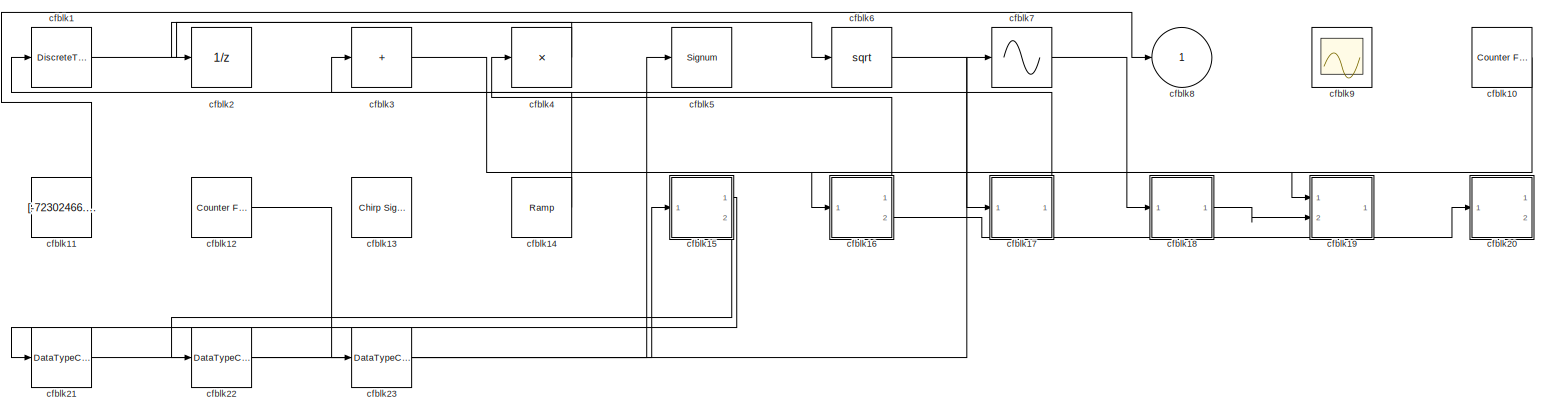
[diagram: root canvas - part 1/1, most of the canvas]
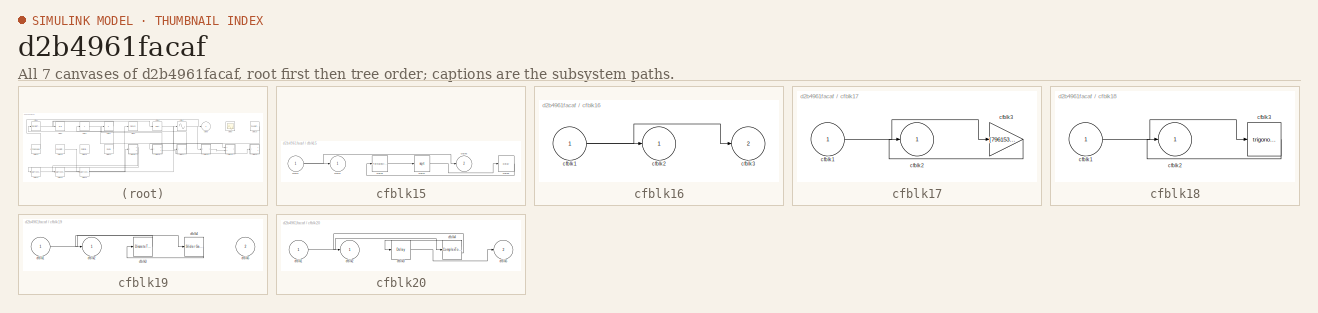
[diagram: thumbnail index - all 7 canvases of the model, root first then tree order]
MODEL slx_d2b4961facaf
KIND model
CONFIG AbsTol = auto
CONFIG EnableMultiTasking = off
CONFIG FixedStep = auto
CONFIG MaxStep = auto
CONFIG MinStep = auto
CONFIG RelTol = 1e-3
CONFIG SampleTimeConstraint = Unconstrained
CONFIG SolverName = VariableStepAuto
CONFIG StartTime = 0.0
CONFIG StopTime = 10.0
BLOCK [DiscreteTransferFcn] cfblk1
  InputPortMap = u0
  Ports = [1, 1]
  SampleTime = 1
BLOCK [Reference] cfblk10  REF=simulink/Sources/Counter
Free-Running
  Ports = [0, 1]
  SourceBlock = simulink/Sources/Counter\nFree-Running
  SourceProductBaseCode = SL
  SourceType = Counter Free-Running
BLOCK [Constant] cfblk11
  SampleTime = 1
  Value = [-72302466.835759]
BLOCK [Reference] cfblk12  REF=simulink/Sources/Counter
Free-Running
  Ports = [0, 1]
  SourceBlock = simulink/Sources/Counter\nFree-Running
  SourceProductBaseCode = SL
  SourceType = Counter Free-Running
BLOCK [Reference] cfblk13  REF=simulink/Sources/Chirp Signal
  Ports = [0, 1]
  SourceBlock = simulink/Sources/Chirp Signal
  SourceProductBaseCode = SL
  SourceType = chirp
BLOCK [Reference] cfblk14  REF=simulink/Sources/Ramp
  Ports = [0, 1]
  SourceBlock = simulink/Sources/Ramp
  SourceProductBaseCode = SL
  SourceType = Ramp
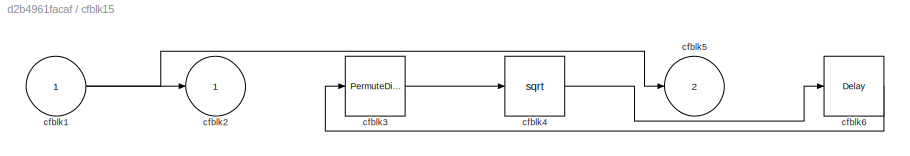
BLOCK [SubSystem] cfblk15
  Ports = [1, 2]
  RequestExecContextInheritance = off
BLOCK [Inport] cfblk15/cfblk1
BLOCK [Outport] cfblk15/cfblk2
BLOCK [PermuteDimensions] cfblk15/cfblk3
BLOCK [Sqrt] cfblk15/cfblk4
BLOCK [Outport] cfblk15/cfblk5
  Port = 2
BLOCK [Delay] cfblk15/cfblk6
  InputPortMap = u0
  Ports = [1, 1]
  SampleTime = 1
BLOCK [SubSystem] cfblk16
  Ports = [1, 2]
  RequestExecContextInheritance = off
BLOCK [Inport] cfblk16/cfblk1
BLOCK [Outport] cfblk16/cfblk2
BLOCK [Outport] cfblk16/cfblk3
  Port = 2
BLOCK [SubSystem] cfblk17
  Ports = [1, 1]
  RequestExecContextInheritance = off
BLOCK [Inport] cfblk17/cfblk1
BLOCK [Outport] cfblk17/cfblk2
BLOCK [Gain] cfblk17/cfblk3
  Gain = [796153779.028941]
BLOCK [SubSystem] cfblk18
  Ports = [1, 1]
  RequestExecContextInheritance = off
BLOCK [Inport] cfblk18/cfblk1
BLOCK [Outport] cfblk18/cfblk2
BLOCK [Trigonometry] cfblk18/cfblk3
  Ports = [1, 1]
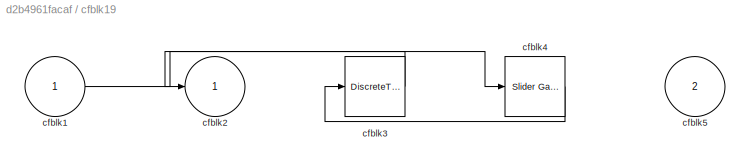
BLOCK [SubSystem] cfblk19
  Ports = [2, 1]
  RequestExecContextInheritance = off
BLOCK [Inport] cfblk19/cfblk1
BLOCK [Outport] cfblk19/cfblk2
BLOCK [DiscreteTransferFcn] cfblk19/cfblk3
  InputPortMap = u0
  Ports = [1, 1]
  SampleTime = 1
BLOCK [Reference] cfblk19/cfblk4  REF=simulink/Math
Operations/Slider
Gain
  Ports = [1, 1]
  SourceBlock = simulink/Math\nOperations/Slider\nGain
  SourceProductBaseCode = SL
  SourceType = Slider Gain
BLOCK [Inport] cfblk19/cfblk5
  Port = 2
BLOCK [UnitDelay] cfblk2
  HasFrameUpgradeWarning = on
BLOCK [SubSystem] cfblk20
  Ports = [1, 2]
  RequestExecContextInheritance = off
BLOCK [Inport] cfblk20/cfblk1
BLOCK [Outport] cfblk20/cfblk2
BLOCK [Delay] cfblk20/cfblk3
  InputPortMap = u0
  Ports = [1, 1]
  SampleTime = 1
BLOCK [ComplexToRealImag] cfblk20/cfblk4
  Ports = [1, 2]
BLOCK [Outport] cfblk20/cfblk5
  Port = 2
BLOCK [DataTypeConversion] cfblk21
  RndMeth = Floor
  SaturateOnIntegerOverflow = off
BLOCK [DataTypeConversion] cfblk22
  RndMeth = Floor
  SaturateOnIntegerOverflow = off
BLOCK [DataTypeConversion] cfblk23
  RndMeth = Floor
  SaturateOnIntegerOverflow = off
BLOCK [Sum] cfblk3
  IconShape = rectangular
  Inputs = +
  Ports = [1, 1]
BLOCK [Product] cfblk4
  Inputs = *
  Ports = [1, 1]
BLOCK [Signum] cfblk5
BLOCK [Sqrt] cfblk6
BLOCK [Sin] cfblk7
  Ports = [1, 1]
  SampleTime = 0
  TimeSource = Use external signal
BLOCK [Outport] cfblk8
BLOCK [Scope] cfblk9
  Floating = on
  NumInputPorts = 1
  Ports = []
LINE cfblk10:1 -> cfblk16:1
LINE cfblk11:1 -> cfblk8:1
LINE cfblk12:1 -> cfblk23:1
LINE cfblk14:1 -> cfblk1:1
NET cfblk15/cfblk1:1 -> cfblk15/cfblk2:1, cfblk15/cfblk5:1
LINE cfblk15/cfblk3:1 -> cfblk15/cfblk4:1
LINE cfblk15/cfblk4:1 -> cfblk15/cfblk6:1
LINE cfblk15/cfblk6:1 -> cfblk15/cfblk3:1
LINE cfblk15:1 -> cfblk21:1
LINE cfblk15:2 -> cfblk22:1
NET cfblk16/cfblk1:1 -> cfblk16/cfblk2:1, cfblk16/cfblk3:1
LINE cfblk16:1 -> cfblk4:1
LINE cfblk16:2 -> cfblk20:1
LINE cfblk17/cfblk1:1 -> cfblk17/cfblk3:1
LINE cfblk17/cfblk3:1 -> cfblk17/cfblk2:1
LINE cfblk17:1 -> cfblk3:1
LINE cfblk18/cfblk1:1 -> cfblk18/cfblk3:1
LINE cfblk18/cfblk3:1 -> cfblk18/cfblk2:1
LINE cfblk18:1 -> cfblk19:2
LINE cfblk19/cfblk1:1 -> cfblk19/cfblk4:1
LINE cfblk19/cfblk3:1 -> cfblk19/cfblk2:1
LINE cfblk19/cfblk4:1 -> cfblk19/cfblk3:1
LINE cfblk1:1 -> cfblk6:1
LINE cfblk20/cfblk1:1 -> cfblk20/cfblk4:1
LINE cfblk20/cfblk3:1 -> cfblk20/cfblk5:1
LINE cfblk20/cfblk4:1 -> cfblk20/cfblk3:1
LINE cfblk20/cfblk4:2 -> cfblk20/cfblk2:1
LINE cfblk21:1 -> cfblk7:1
LINE cfblk22:1 -> cfblk5:1
LINE cfblk23:1 -> cfblk15:1
LINE cfblk3:1 -> cfblk19:1
LINE cfblk4:1 -> cfblk2:1
LINE cfblk6:1 -> cfblk17:1
LINE cfblk7:1 -> cfblk18:1
note: NET lines group one-source signal fan-out (src -> all destinations, sorted); 1:1 wires keep LINE
